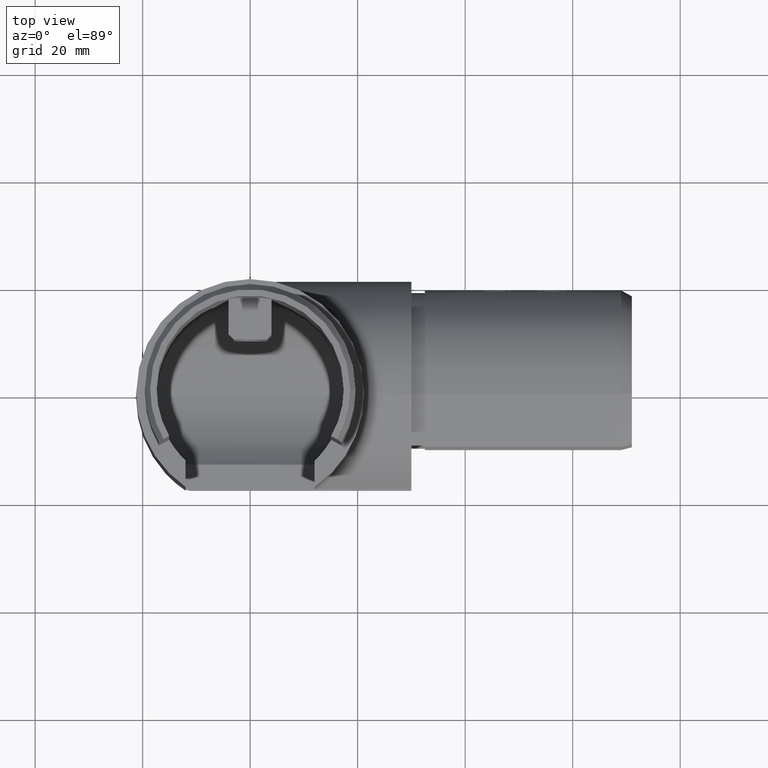
[diagram: clean part render]
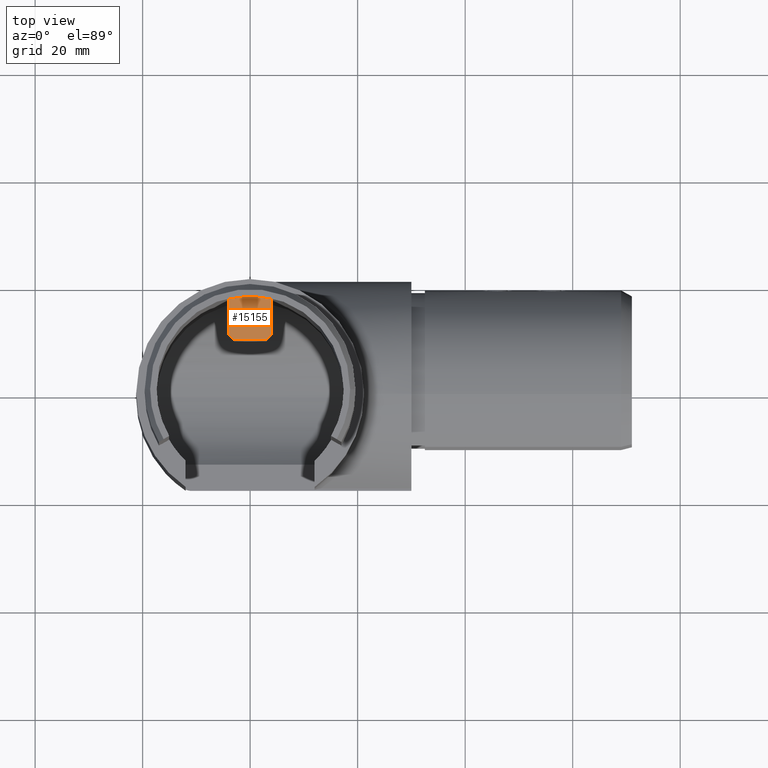
[diagram: same view with one face highlighted and labeled with its STEP entity id]
A machine part, top view. The second image highlights one B-rep face of the part: STEP entity #15155.
In plain terms, the highlighted planar face has unit normal (-0, 0, 1).
Its self-contained STEP definition (entity closure, byte-faithful):
#476 = CARTESIAN_POINT ( 'NONE',  ( -3.999999999995340600, 10.40000000001839500, 60.00000000000000700 ) ) ;
#806 = EDGE_CURVE ( 'NONE', #14747, #2282, #18486, .T. ) ;
#820 = CARTESIAN_POINT ( 'NONE',  ( -4.000000000000002700, 16.93398948859955100, 60.00000000000000700 ) ) ;
#866 = FACE_OUTER_BOUND ( 'NONE', #18790, .T. ) ;
#900 = VECTOR ( 'NONE', #20297, 1000.000000000000000 ) ;
#1681 = CARTESIAN_POINT ( 'NONE',  ( 3.999999999999997300, 10.40000000000418400, 60.00000000000001400 ) ) ;
#1900 = VERTEX_POINT ( 'NONE', #19990 ) ;
#1970 = EDGE_CURVE ( 'NONE', #1900, #9905, #5228, .T. ) ;
#2282 = VERTEX_POINT ( 'NONE', #1681 ) ;
#3172 = DIRECTION ( 'NONE',  ( -8.673617379884035500E-016, 0.0000000000000000000, 1.000000000000000000 ) ) ;
#3261 = EDGE_CURVE ( 'NONE', #13718, #5121, #7395, .T. ) ;
#4067 = LINE ( 'NONE', #16134, #11401 ) ;
#4463 = VECTOR ( 'NONE', #11216, 999.9999999999998900 ) ;
#4868 = CARTESIAN_POINT ( 'NONE',  ( 0.0000000000000000000, 0.0000000000000000000, 60.00000000000001400 ) ) ;
#5121 = VERTEX_POINT ( 'NONE', #12869 ) ;
#5228 = CIRCLE ( 'NONE', #5559, 17.40000000000000200 ) ;
#5559 = AXIS2_PLACEMENT_3D ( 'NONE', #4868, #3172, #10959 ) ;
#5792 = DIRECTION ( 'NONE',  ( 0.7071067811850744200, 0.7071067811880207300, 6.133173666720719000E-016 ) ) ;
#5824 = CARTESIAN_POINT ( 'NONE',  ( 3.999999999999997300, 500000.0000000000600, 60.00000000000001400 ) ) ;
#7395 = LINE ( 'NONE', #11151, #4463 ) ;
#7398 = DIRECTION ( 'NONE',  ( -8.673617379884035500E-016, 0.0000000000000000000, 1.000000000000000000 ) ) ;
#7616 = ORIENTED_EDGE ( 'NONE', *, *, #9554, .F. ) ;
#8357 = EDGE_CURVE ( 'NONE', #9905, #13718, #11923, .T. ) ;
#8379 = LINE ( 'NONE', #16116, #11824 ) ;
#8975 = CARTESIAN_POINT ( 'NONE',  ( -4.000000000000002700, 500000.0000000000600, 60.00000000000000700 ) ) ;
#9554 = EDGE_CURVE ( 'NONE', #1900, #2282, #4067, .T. ) ;
#9905 = VERTEX_POINT ( 'NONE', #820 ) ;
#10516 = CARTESIAN_POINT ( 'NONE',  ( 249998.8000000000200, 250005.2000010417000, 60.00000000021684300 ) ) ;
#10959 = DIRECTION ( 'NONE',  ( 1.000000000000000000, 0.0000000000000000000, 7.975740119433594600E-016 ) ) ;
#11136 = ORIENTED_EDGE ( 'NONE', *, *, #806, .T. ) ;
#11151 = CARTESIAN_POINT ( 'NONE',  ( -249994.8000000000200, 250001.2000010451900, 59.99999999978317100 ) ) ;
#11216 = DIRECTION ( 'NONE',  ( 0.7071067811850694200, -0.7071067811880257200, 6.133173666720675600E-016 ) ) ;
#11401 = VECTOR ( 'NONE', #17778, 1000.000000000000000 ) ;
#11824 = VECTOR ( 'NONE', #12910, 1000.000000000000000 ) ;
#11923 = LINE ( 'NONE', #8975, #900 ) ;
#12869 = CARTESIAN_POINT ( 'NONE',  ( -2.999999999938189000, 9.399999999999705500, 60.00000000000000700 ) ) ;
#12910 = DIRECTION ( 'NONE',  ( -1.000000000000000000, 0.0000000000000000000, -8.673617379884035500E-016 ) ) ;
#13351 = ORIENTED_EDGE ( 'NONE', *, *, #8357, .T. ) ;
#13718 = VERTEX_POINT ( 'NONE', #476 ) ;
#14040 = ORIENTED_EDGE ( 'NONE', *, *, #17440, .F. ) ;
#14747 = VERTEX_POINT ( 'NONE', #15685 ) ;
#15155 = ADVANCED_FACE ( 'NONE', ( #866 ), #20028, .T. ) ;
#15685 = CARTESIAN_POINT ( 'NONE',  ( 2.999999999950013800, 9.399999999971283800, 60.00000000000001400 ) ) ;
#16116 = CARTESIAN_POINT ( 'NONE',  ( 3.999999999999997300, 9.400000000000002100, 60.00000000000001400 ) ) ;
#16134 = CARTESIAN_POINT ( 'NONE',  ( 3.999999999999997300, 500000.0000000000600, 60.00000000000001400 ) ) ;
#17341 = ORIENTED_EDGE ( 'NONE', *, *, #1970, .T. ) ;
#17440 = EDGE_CURVE ( 'NONE', #14747, #5121, #8379, .T. ) ;
#17778 = DIRECTION ( 'NONE',  ( 0.0000000000000000000, -1.000000000000000000, 0.0000000000000000000 ) ) ;
#18220 = VECTOR ( 'NONE', #5792, 1000.000000000000000 ) ;
#18285 = ORIENTED_EDGE ( 'NONE', *, *, #3261, .T. ) ;
#18360 = DIRECTION ( 'NONE',  ( 1.000000000000000000, 0.0000000000000000000, 8.673617379884035500E-016 ) ) ;
#18486 = LINE ( 'NONE', #10516, #18220 ) ;
#18703 = AXIS2_PLACEMENT_3D ( 'NONE', #5824, #7398, #18360 ) ;
#18790 = EDGE_LOOP ( 'NONE', ( #13351, #18285, #14040, #11136, #7616, #17341 ) ) ;
#19990 = CARTESIAN_POINT ( 'NONE',  ( 3.999999999999997300, 16.93398948859955400, 60.00000000000001400 ) ) ;
#20028 = PLANE ( 'NONE',  #18703 ) ;
#20297 = DIRECTION ( 'NONE',  ( 0.0000000000000000000, -1.000000000000000000, 0.0000000000000000000 ) ) ;